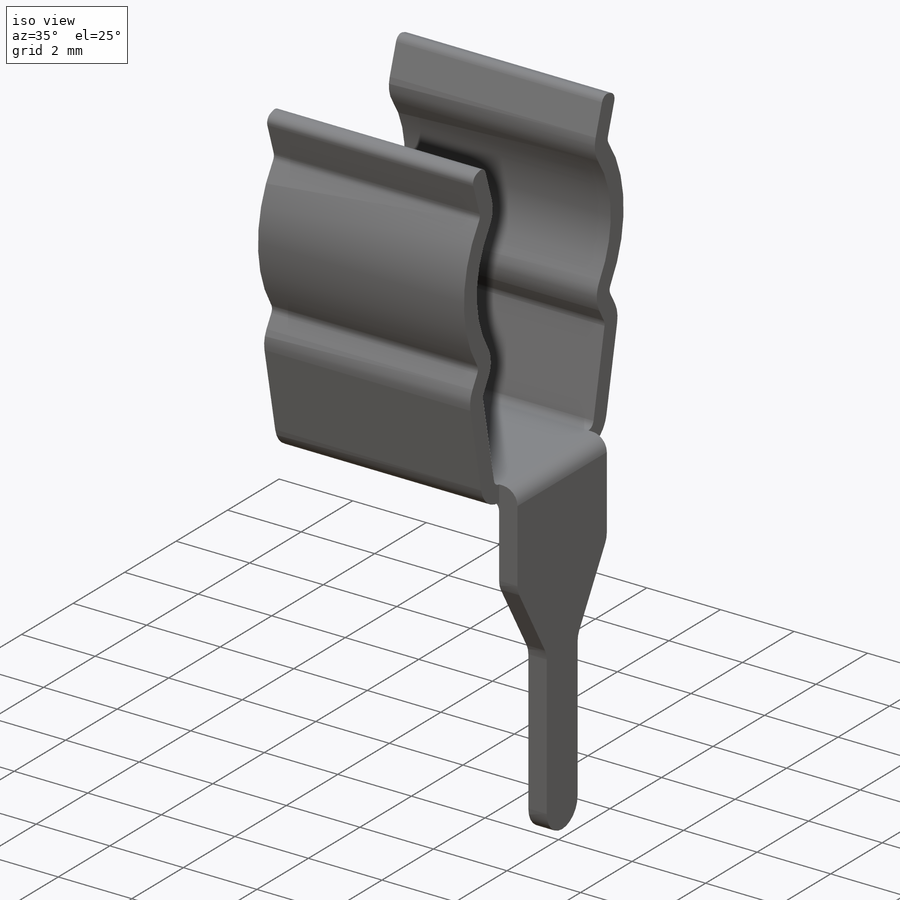
[diagram: iso view]
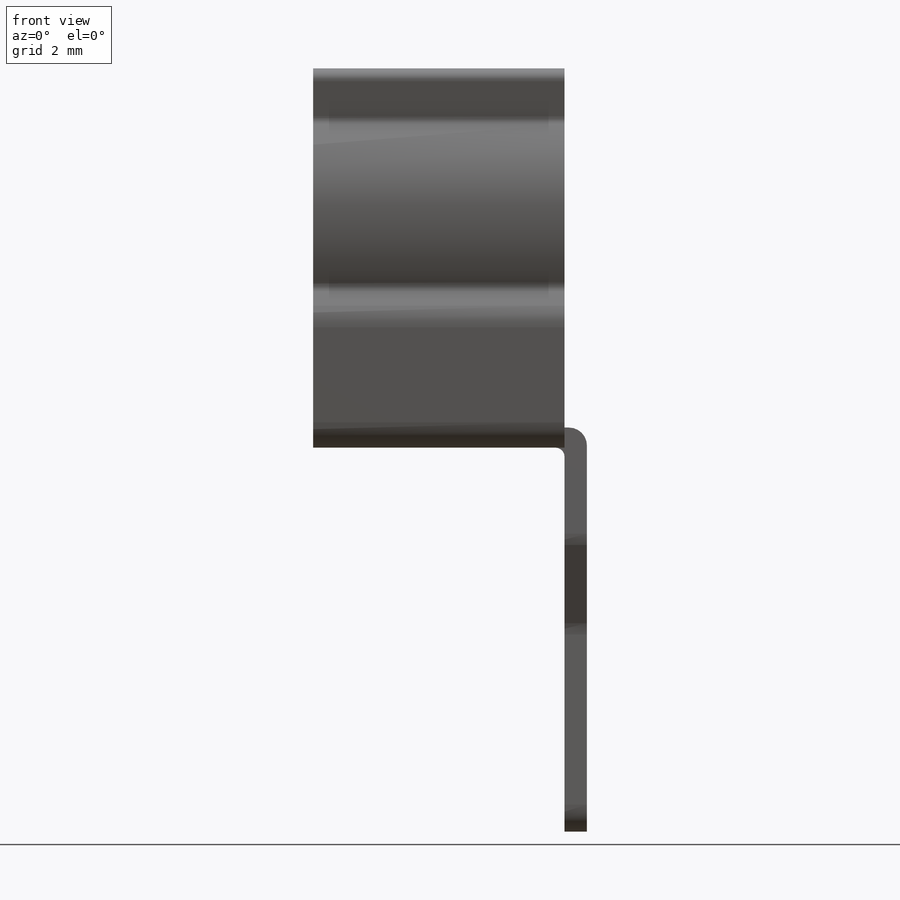
[diagram: front view]
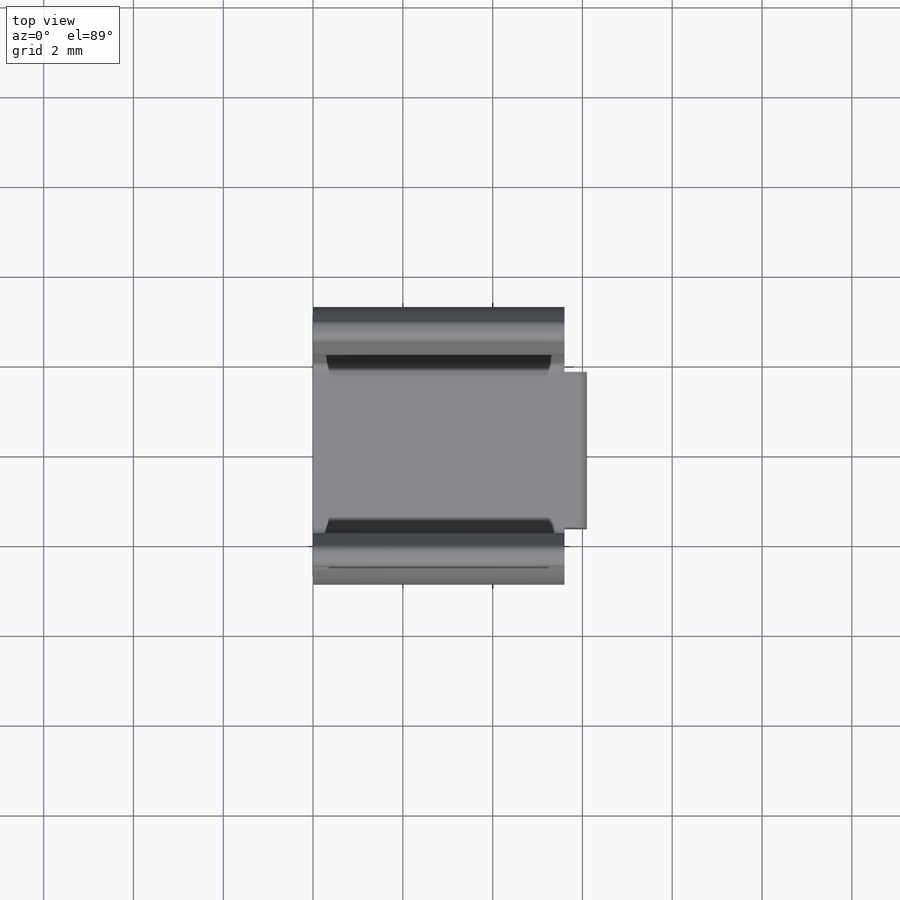
[diagram: top view]
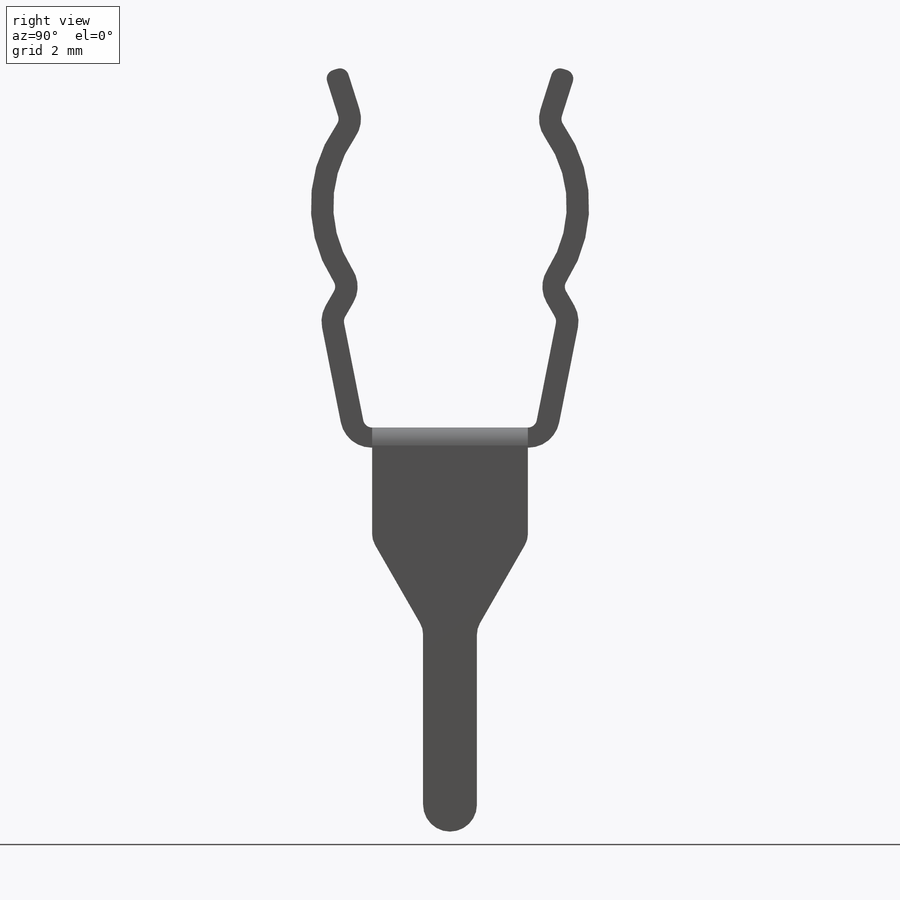
[diagram: right view]
SOLIDWORKS PART (.sldprt)
format: sldprt  version: not decoded by parser v0  size: 284,672 bytes
history: native  units: mm
features: plane x3, sketch x2, extrude x2, fillet x2, material x1 (+8 scaffold rows collapsed)
feature tree (18):
  scaffold x8  (default folders/planes/origin — collapsed)
  material  "Matériau <non spécifié>"
  plane  "Plan de face"
  plane  "Plan de dessus"
  plane  "Plan de droite"
  sketch  "Esquisse1"  dims[c1.D4=3.0mm c1.D11=0.2mm c1.D12=0.7mm c1.D1=3.1mm c1.D2=8.5mm c1.D3=8.5mm c2.D4=1.9mm c2.D5=3.8mm c2.D6=~3.720647mm c3.D6=30.0deg c3.D7=0.5mm c3.D8=0.5mm c3.D9=0.5mm c3.D10=~1.325176mm c4.D10=90.0deg]
  extrude  "Boss.-Extru.1"  Depth=5.6mm
  sketch  "Esquisse2"  dims[c1.D5=0.5mm c1.D1=0.6mm c1.D2=9.0mm c1.D3=2.5mm c1.D4=~9.317916mm c2.D4=30.0deg]
  extrude  "Boss.-Extru.2"  Depth=0.5mm
  fillet  "Congé1"  Radius=0.4mm
  fillet  "Congé2"  Radius=0.2mm
decode coverage: 6 of 6 modeling features carry decoded parameters
note: ~ marks probable driven/reference dimensions
note: suppression state not decoded; provenance and decode notes live in map.json
